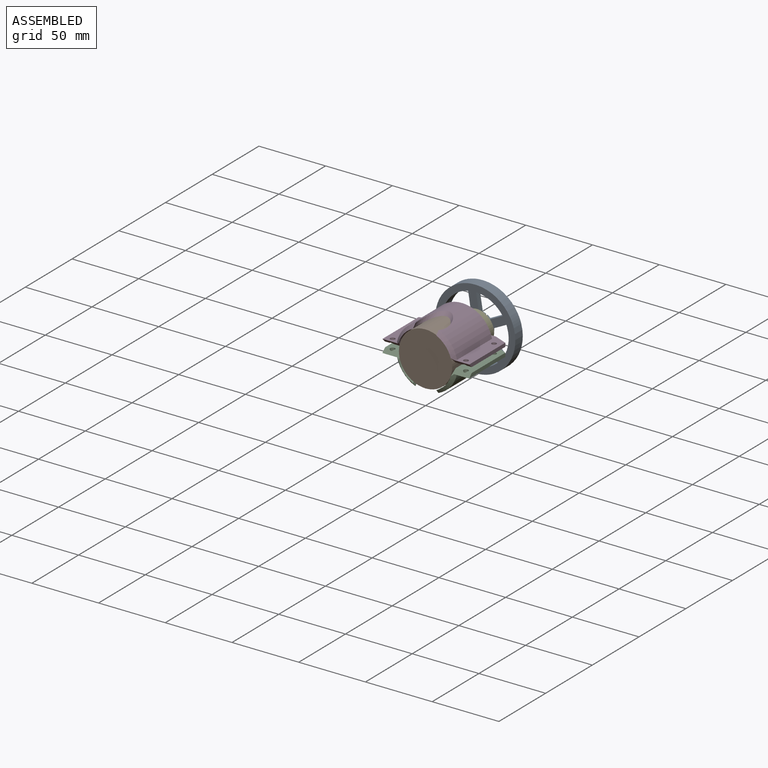
[diagram: assembled view]
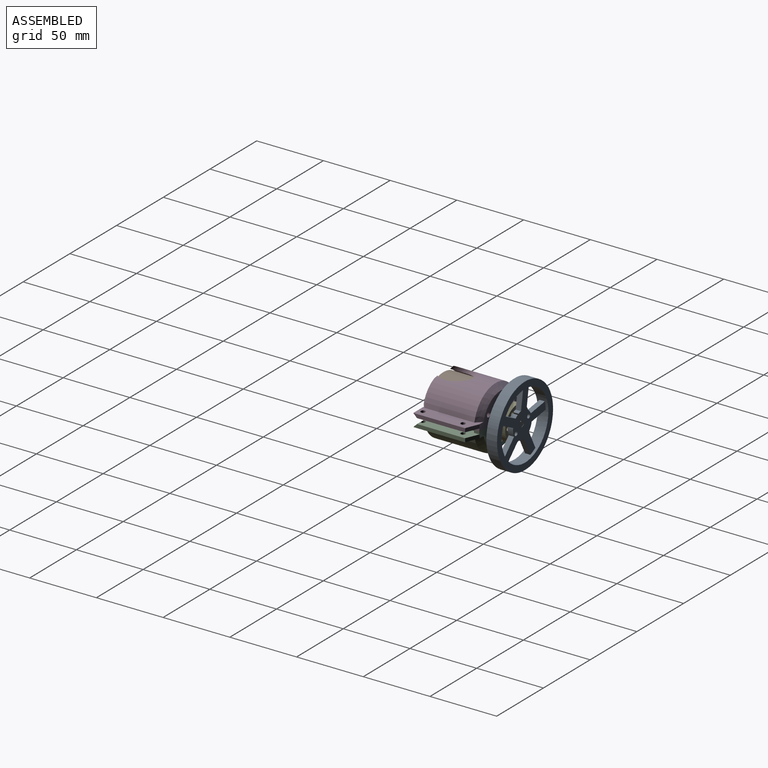
[diagram: assembled view, second angle]
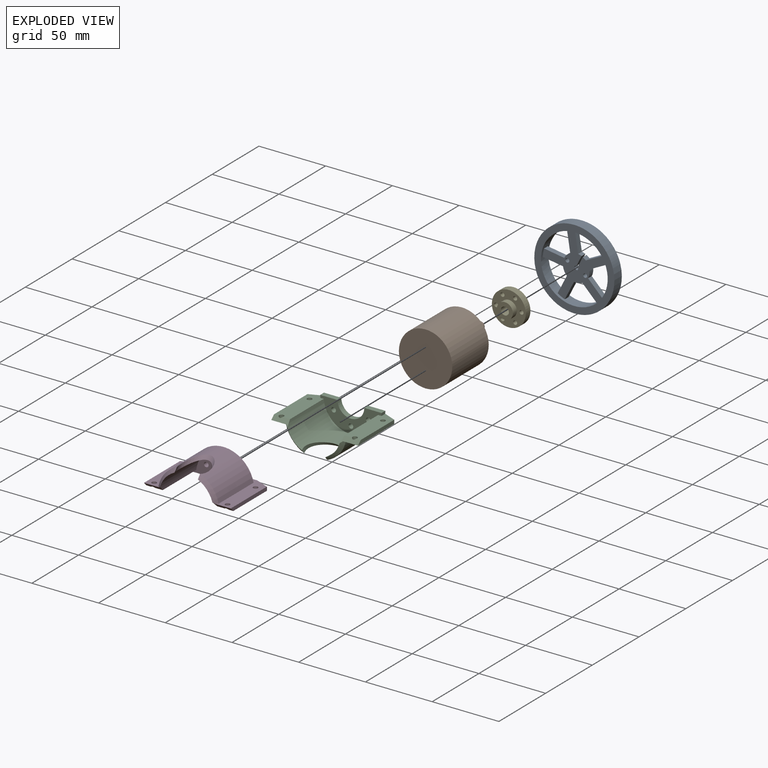
[diagram: exploded view]
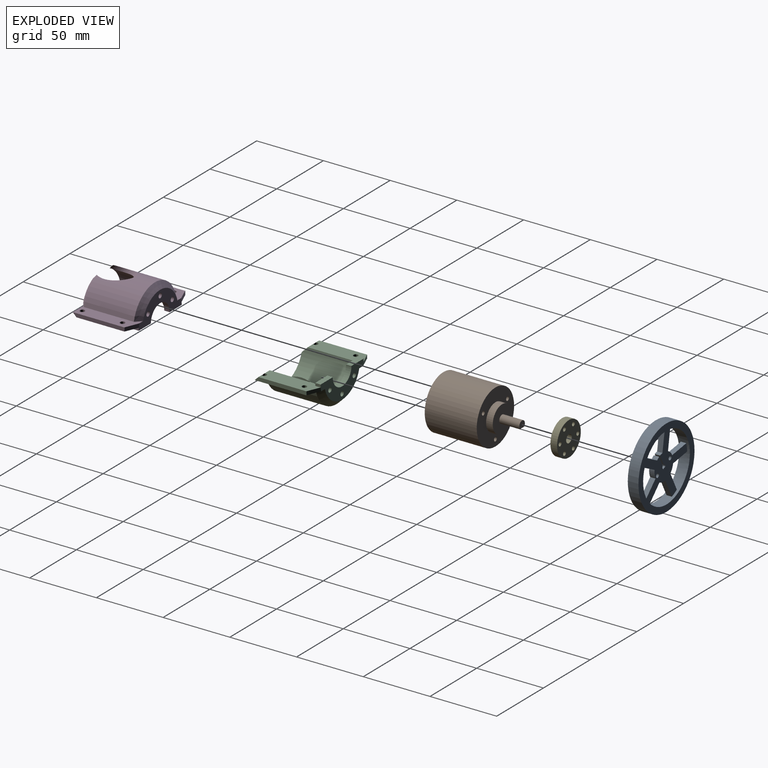
[diagram: exploded view, second angle]
ASSEMBLY  parts=5 mates=7
PART A: 33 faces, bbox 60x8x61.1 mm
  f0: cylinder r=30mm len=60mm, axis (0,1,0), area 754mm2, adj f1,f2,f3
  f1: cylinder r=30mm len=60mm, axis (0,1,0), area 754mm2, adj f0,f2,f3
  f2: plane 61.11x60mm, normal (0,-1,0), area 863.9mm2, adj f0,f1,f18,f25
  f3: plane 61.11x60mm, normal (0,1,0), area 863.9mm2, adj f0,f1,f18,f25
  f4: cylinder r=1.5mm len=4mm, axis (0,-1,0), area 18.8mm2, adj f5,f29,f31
  f5: cylinder r=1.5mm len=4mm, axis (0,-1,0), area 18.8mm2, adj f4,f29,f31
  f6: cylinder r=1.5mm len=4mm, axis (0,-1,0), area 11.8mm2, adj f7,f28,f29,f31
  f7: plane 4x2.24mm, normal (0,0,1), area 8.9mm2, adj f6,f8,f29,f31
  f8: cylinder r=1.5mm len=4mm, axis (0,-1,0), area 11.8mm2, adj f7,f9,f29,f31
  f9: plane 8.57x4mm, normal (-1,0,0), area 34.3mm2, adj f8,f10,f29,f31
  f10: cylinder r=10mm len=4mm, axis (0,-1,0), area 10.9mm2, adj f9,f11,f29,f31
  f11: plane 12.36x8.98mm, normal (-0.81,0,0.59), area 61.1mm2, adj f10,f18,f29,f31
  f12: plane 12.36x8.98mm, normal (0.81,0,-0.59), area 61.1mm2, adj f13,f18,f29,f31
  f13: cylinder r=10mm len=6.05mm, axis (0,-1,0), area 25.9mm2, adj f12,f14,f29,f31
  f14: plane 14.53x4.72mm, normal (0.31,0,0.95), area 61.1mm2, adj f13,f18,f29,f31
  f15: plane 14.53x4.72mm, normal (-0.31,0,-0.95), area 61.1mm2, adj f16,f18,f29,f31
  f16: cylinder r=10mm len=5.15mm, axis (0,-1,0), area 25.9mm2, adj f15,f17,f29,f31
  f17: plane 15.28x4mm, normal (1,0,0), area 61.1mm2, adj f16,f18,f29,f31
  f18: cylinder r=25mm len=49.82mm, axis (0,-1,0), area 556.1mm2, adj f2,f3,f11,f12,f14,f15,f17,f25
  f19: plane 15.28x4mm, normal (-1,0,0), area 61.1mm2, adj f20,f25,f29,f31
  f20: cylinder r=10mm len=5.15mm, axis (0,-1,0), area 25.9mm2, adj f19,f21,f29,f31
  f21: plane 14.53x4.72mm, normal (0.31,0,-0.95), area 61.1mm2, adj f20,f25,f29,f31
  f22: plane 14.53x4.72mm, normal (-0.31,0,0.95), area 61.1mm2, adj f23,f25,f29,f31
  f23: cylinder r=10mm len=6.05mm, axis (0,-1,0), area 25.9mm2, adj f22,f24,f29,f31
  f24: plane 12.36x8.98mm, normal (-0.81,0,-0.59), area 61.1mm2, adj f23,f25,f29,f31
  f25: cylinder r=25mm len=49.82mm, axis (0,-1,0), area 580.2mm2, adj f2,f3,f18,f19,f21,f22,f24,f26
  f26: plane 12.36x8.98mm, normal (0.81,0,0.59), area 61.1mm2, adj f25,f27,f29,f31
  f27: cylinder r=10mm len=4mm, axis (0,-1,0), area 10.9mm2, adj f26,f28,f29,f31
  f28: plane 8.57x4mm, normal (1,0,0), area 34.3mm2, adj f6,f27,f29,f31
  f29: plane 49.06x46.85mm, normal (0,1,0), area 738mm2, adj f4,f5,f6,f7,f8,f9,f10,f11
  f30: cylinder r=1.5mm len=4mm, axis (0,-1,0), area 18.8mm2, adj f29,f31,f32
  f31: plane 49.06x46.85mm, normal (0,-1,0), area 738mm2, adj f4,f5,f6,f7,f8,f9,f10,f11
  f32: cylinder r=1.5mm len=4mm, axis (0,-1,0), area 18.8mm2, adj f29,f30,f31
PART B: 21 faces, bbox 40x59x40.7 mm
  f0: plane 4.47x1.02mm, normal (0,1,0), area 3.1mm2, adj f1,f4
  f1: plane 10x4.47mm, normal (0,0,-1), area 44.7mm2, adj f0,f2,f3,f4
  f2: plane 6.1x5.05mm, normal (0,1,0), area 25.2mm2, adj f1,f3,f4
  f3: cylinder r=3mm len=15mm, axis (0,1,0), area 141.4mm2, adj f1,f2,f4,f7
  f4: cylinder r=3mm len=15mm, axis (0,1,0), area 90.9mm2, adj f0,f1,f2,f3,f7
  f5: plane 3.06x3mm, normal (0,1,0), area 7.1mm2, adj f9,f10
  f6: plane 3.06x3mm, normal (0,1,0), area 7.1mm2, adj f11,f12
  f7: plane 20.37x20mm, normal (0,1,0), area 285.9mm2, adj f3,f4,f13,f14
  f8: plane 40.74x40mm, normal (0,-1,0), area 1256.6mm2, adj f15,f16
  f9: cylinder r=1.5mm len=5mm, axis (0,-1,0), area 23.6mm2, adj f5,f10,f17
  f10: cylinder r=1.5mm len=5mm, axis (0,-1,0), area 23.6mm2, adj f5,f9,f17
  f11: cylinder r=1.5mm len=5mm, axis (0,-1,0), area 23.6mm2, adj f6,f12,f17
  f12: cylinder r=1.5mm len=5mm, axis (0,-1,0), area 23.6mm2, adj f6,f11,f17
  f13: cylinder r=10mm len=20mm, axis (0,1,0), area 157.1mm2, adj f7,f14,f17
  f14: cylinder r=10mm len=20mm, axis (0,1,0), area 157.1mm2, adj f7,f13,f17
  f15: cylinder r=20mm len=40mm, axis (0,1,0), area 2450.4mm2, adj f8,f16,f17
  f16: cylinder r=20mm len=40mm, axis (0,1,0), area 2450.4mm2, adj f8,f15,f17
  f17: plane 40.74x40mm, normal (0,1,0), area 921.3mm2, adj f9,f10,f11,f12,f13,f14,f15,f16
  f18: cylinder r=1.5mm len=5mm, axis (0,-1,0), area 23.6mm2, adj f17,f19,f20
  f19: plane 3.06x3mm, normal (0,1,0), area 7.1mm2, adj f18,f20
  f20: cylinder r=1.5mm len=5mm, axis (0,-1,0), area 23.6mm2, adj f17,f18,f19
PART C: 40 faces, bbox 66.7x45.9x35.4 mm
  f0: cylinder r=1.75mm len=3.19mm, axis (0,0,-1), area 13.6mm2, adj f1,f7,f8,f19
  f1: cylinder r=1.75mm len=3.19mm, axis (0,0,-1), area 15.2mm2, adj f0,f7,f19
  f2: plane 38.77x2.77mm, normal (-1,0,0), area 103.5mm2, adj f3,f7,f8,f19
  f3: plane 2.77x0.35mm, normal (0,1,0), area 0.5mm2, adj f2,f6,f7,f19
  f4: cylinder r=1.75mm len=3.5mm, axis (0,0,-1), area 15.2mm2, adj f5,f7,f19
  f5: cylinder r=1.75mm len=3.5mm, axis (0,0,-1), area 15.2mm2, adj f4,f7,f19
  f6: cone r=27.75mm half-angle=67.2deg, axis (0,-1,0), area 29.4mm2, adj f3,f7,f19,f23
  f7: plane 43.7x15.04mm, normal (0,0,1), area 396.8mm2, adj f0,f1,f2,f3,f4,f5,f6,f8
  f8: plane 12.94x4.04mm, normal (0,-0.71,-0.71), area 47.1mm2, adj f0,f2,f7,f9,f19,f29
  f9: cone r=21.75mm half-angle=45deg, axis (0,1,0), area 71mm2, adj f7,f8,f10,f25,f29
  f10: cylinder r=10mm len=25.6mm, axis (0,0.71,0.71), area 77.9mm2, adj f9,f11,f25,f29
  f11: cylinder r=10mm len=25.6mm, axis (0,0.71,0.71), area 77.9mm2, adj f10,f25,f26,f29
  f12: cylinder r=1.75mm len=4mm, axis (0,-1,0), area 22mm2, adj f13,f23,f30
  f13: cylinder r=1.75mm len=4mm, axis (0,-1,0), area 22mm2, adj f12,f23,f30
  f14: cylinder r=1.75mm len=4mm, axis (0,-1,0), area 22mm2, adj f15,f23,f30
  f15: cylinder r=1.75mm len=4mm, axis (0,-1,0), area 22mm2, adj f14,f23,f30
  f16: cylinder r=1.75mm len=4mm, axis (0,-1,0), area 22mm2, adj f17,f23,f30
  f17: cylinder r=1.75mm len=4mm, axis (0,-1,0), area 22mm2, adj f16,f23,f30
  f18: cylinder r=10mm len=20mm, axis (0,-1,0), area 125.7mm2, adj f21,f22,f23,f30
  f19: plane 41.72x13.82mm, normal (0,0,-1), area 436.8mm2, adj f0,f1,f2,f3,f4,f5,f6,f8
  f20: cylinder r=23mm len=4mm, axis (0,1,0), area 8mm2, adj f19,f21,f23,f30
  f21: plane 13x4mm, normal (0,0,-1), area 52mm2, adj f18,f20,f23,f30
  f22: plane 13x4mm, normal (0,0,-1), area 52mm2, adj f18,f23,f30,f31
  f23: plane 46x19.25mm, normal (0,1,0), area 419.6mm2, adj f6,f7,f12,f13,f14,f15,f16,f17
  f24: cone r=21mm half-angle=45deg, axis (0,-1,0), area 318.4mm2, adj f7,f23,f25,f36
  f25: cylinder r=23mm len=45mm, axis (0,1,0), area 1960.9mm2, adj f7,f9,f10,f11,f24,f26,f36
  f26: cone r=21.75mm half-angle=45deg, axis (0,1,0), area 71mm2, adj f11,f25,f29,f35,f36
  f27: cylinder r=1.75mm len=3.19mm, axis (0,0,-1), area 15.2mm2, adj f28,f36,f38
  f28: cylinder r=1.75mm len=3.19mm, axis (0,0,-1), area 13.6mm2, adj f27,f35,f36,f38
  f29: cylinder r=20.5mm len=40.8mm, axis (0,-1,0), area 2009.5mm2, adj f8,f9,f10,f11,f19,f26,f30,f35
  f30: plane 46x20.83mm, normal (0,-1,0), area 484.2mm2, adj f12,f13,f14,f15,f16,f17,f18,f19
  f31: cylinder r=23mm len=4mm, axis (0,1,0), area 8mm2, adj f22,f23,f30,f38
  f32: cone r=27.75mm half-angle=67.2deg, axis (0,-1,0), area 29.4mm2, adj f23,f33,f36,f38
  f33: plane 2.77x0.35mm, normal (0,1,0), area 0.5mm2, adj f32,f34,f36,f38
  f34: plane 38.77x2.77mm, normal (1,0,0), area 103.5mm2, adj f33,f35,f36,f38
  f35: plane 12.94x4.04mm, normal (0,-0.71,-0.71), area 47.1mm2, adj f26,f28,f29,f34,f36,f38
  f36: plane 43.7x15.04mm, normal (0,0,1), area 396.8mm2, adj f23,f24,f25,f26,f27,f28,f32,f33
  f37: cylinder r=1.75mm len=3.5mm, axis (0,0,-1), area 15.2mm2, adj f36,f38,f39
  f38: plane 41.72x13.82mm, normal (0,0,-1), area 436.8mm2, adj f27,f28,f29,f30,f31,f32,f33,f34
  f39: cylinder r=1.75mm len=3.5mm, axis (0,0,-1), area 15.2mm2, adj f36,f37,f38
PART D: same geometry as C
PART E: 21 faces, bbox 25.4x9.2x25.9 mm
  f0: plane 12.22x12mm, normal (0,1,0), area 84.8mm2, adj f1,f2,f13,f14
  f1: cylinder r=3mm len=9.2mm, axis (0,-1,0), area 86.7mm2, adj f0,f2,f17
  f2: cylinder r=3mm len=9.2mm, axis (0,-1,0), area 86.7mm2, adj f0,f1,f17
  f3: cylinder r=1.5mm len=5mm, axis (0,1,0), area 23.6mm2, adj f4,f17,f19
  f4: cylinder r=1.5mm len=5mm, axis (0,1,0), area 23.6mm2, adj f3,f17,f19
  f5: cylinder r=1.5mm len=5mm, axis (0,1,0), area 23.6mm2, adj f6,f17,f19
  f6: cylinder r=1.5mm len=5mm, axis (0,1,0), area 23.6mm2, adj f5,f17,f19
  f7: cylinder r=1.5mm len=5mm, axis (0,1,0), area 23.6mm2, adj f8,f17,f19
  f8: cylinder r=1.5mm len=5mm, axis (0,1,0), area 23.6mm2, adj f7,f17,f19
  f9: cylinder r=1.5mm len=5mm, axis (0,1,0), area 23.6mm2, adj f10,f17,f19
  f10: cylinder r=1.5mm len=5mm, axis (0,1,0), area 23.6mm2, adj f9,f17,f19
  f11: cylinder r=1.5mm len=5mm, axis (0,1,0), area 23.6mm2, adj f12,f17,f19
  f12: cylinder r=1.5mm len=5mm, axis (0,1,0), area 23.6mm2, adj f11,f17,f19
  f13: cylinder r=6mm len=12mm, axis (0,1,0), area 79.2mm2, adj f0,f14,f19
  f14: cylinder r=6mm len=12mm, axis (0,1,0), area 79.2mm2, adj f0,f13,f19
  f15: cylinder r=12.7mm len=25.4mm, axis (0,1,0), area 199.5mm2, adj f16,f17,f19
  f16: cylinder r=12.7mm len=25.4mm, axis (0,1,0), area 199.5mm2, adj f15,f17,f19
  f17: plane 25.87x25.4mm, normal (0,-1,0), area 436mm2, adj f1,f2,f3,f4,f5,f6,f7,f8
  f18: cylinder r=1.5mm len=5mm, axis (0,1,0), area 23.6mm2, adj f17,f19,f20
  f19: plane 25.87x25.4mm, normal (0,1,0), area 351.2mm2, adj f3,f4,f5,f6,f7,f8,f9,f10
  f20: cylinder r=1.5mm len=5mm, axis (0,1,0), area 23.6mm2, adj f17,f18,f19
PLACE A rot(axis=(0.23,0,0.97),180deg) t=(0,61.2,0)mm
PLACE B at identity fixed
PLACE C rot(axis=(0,1,0),180deg) t=(0,39,0)mm
PLACE D rot(axis=(0,1,0),0deg) t=(0,39,0)mm
PLACE E rot(axis=(0.71,0,0.71),180deg) t=(0,55.2,0)mm
MATE cylindrical D.f6 <-> B.f3  axis (0,1,0) through (0,20.25,0)mm
MATE cylindrical E.f1 <-> A.f0  axis (0,1,0) through (0,55.2,0)mm
MATE planar C.f30 <-> B.f3  axis (0,-1,0) through (0,39,-9.91)mm
MATE cylindrical C.f6 <-> B.f3  axis (0,1,0) through (0,20.25,0)mm
MATE planar D.f21 <-> C.f22  axis (0,0,-1) through (-16.5,41,0)mm
MATE cylindrical E.f1 <-> B.f3  axis (0,-1,0) through (0,46,0)mm
MATE planar D.f30 <-> B.f17  axis (0,-1,0) through (0,39,9.91)mm
